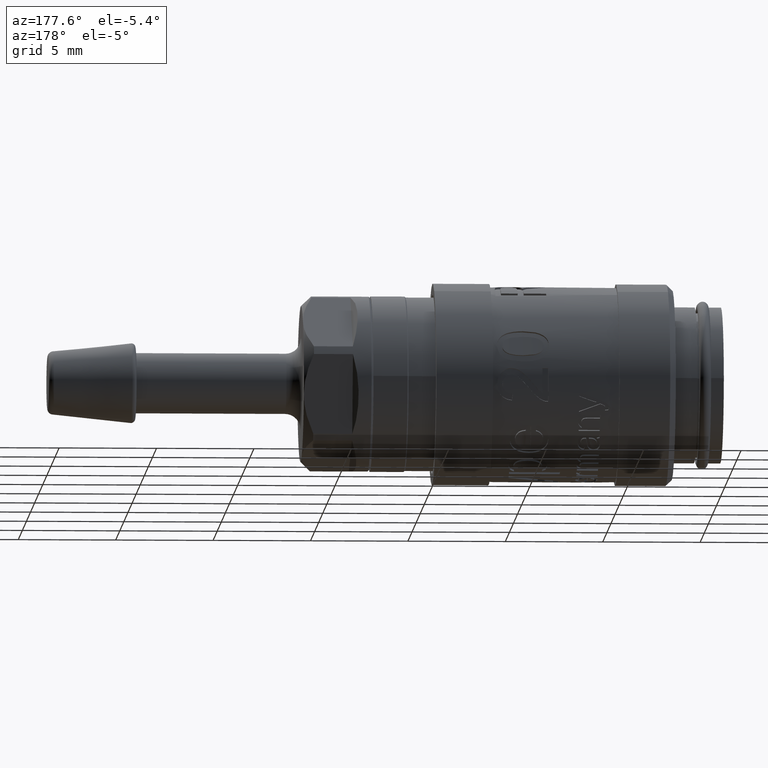
[diagram: clean part render]
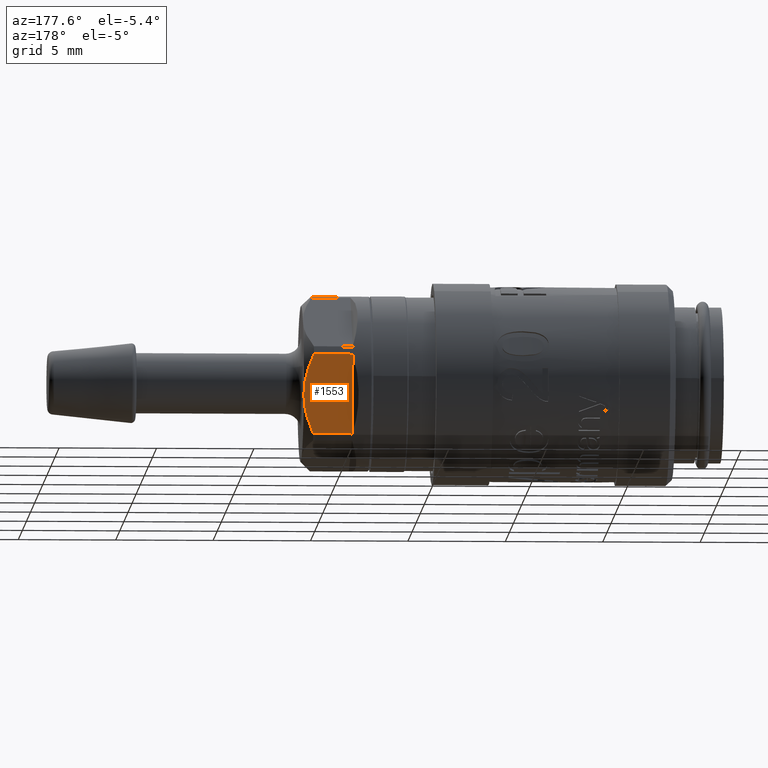
[diagram: same view with one face highlighted and labeled with its STEP entity id]
A machine part, auxiliary view. The second image highlights one B-rep face of the part: STEP entity #1553.
In plain terms, the highlighted planar face has unit normal (0, -0.9755, 0.2201).
Its self-contained STEP definition (entity closure, byte-faithful):
#947=CARTESIAN_POINT('',(21.050000000000004,3.448286589512926,-2.891248795345244));
#948=VERTEX_POINT('',#947);
#949=CARTESIAN_POINT('',(21.550000000000004,3.901947347086584,-0.880231163140669));
#950=VERTEX_POINT('',#949);
#951=CARTESIAN_POINT('',(21.050000000000004,3.448286589512926,-2.891248795345244));
#952=CARTESIAN_POINT('',(21.550000000000004,3.688459931757804,-1.826592401825174));
#953=CARTESIAN_POINT('',(21.550000000000004,3.901947347086584,-0.880231163140669));
#961=(BOUNDED_CURVE()B_SPLINE_CURVE(2,(#951,#952,#953),.UNSPECIFIED.,.F.,.U.)B_SPLINE_CURVE_WITH_KNOTS((3,3),(0.0,0.213402303537986),.UNSPECIFIED.)CURVE()GEOMETRIC_REPRESENTATION_ITEM()RATIONAL_B_SPLINE_CURVE((1.0,1.030776406404437,1.0))REPRESENTATION_ITEM(''));
#962=EDGE_CURVE('',#948,#950,#961,.T.);
#1065=CARTESIAN_POINT('',(21.050000000000004,4.355608104660243,1.130786469063905));
#1066=VERTEX_POINT('',#1065);
#1067=CARTESIAN_POINT('',(21.550000000000004,3.901947347086584,-0.880231163140669));
#1068=CARTESIAN_POINT('',(21.550000000000004,4.115434762415365,0.066130075543836));
#1069=CARTESIAN_POINT('',(21.050000000000004,4.355608104660243,1.130786469063905));
#1077=(BOUNDED_CURVE()B_SPLINE_CURVE(2,(#1067,#1068,#1069),.UNSPECIFIED.,.F.,.U.)B_SPLINE_CURVE_WITH_KNOTS((3,3),(0.213402303537986,0.426804607075971),.UNSPECIFIED.)CURVE()GEOMETRIC_REPRESENTATION_ITEM()RATIONAL_B_SPLINE_CURVE((1.0,1.030776406404401,1.0))REPRESENTATION_ITEM(''));
#1078=EDGE_CURVE('',#950,#1066,#1077,.T.);
#1419=CARTESIAN_POINT('',(19.050000000000001,4.355608104660243,1.130786469063904));
#1420=VERTEX_POINT('',#1419);
#1421=CARTESIAN_POINT('',(19.050000000000001,3.448286589512926,-2.891248795345244));
#1422=VERTEX_POINT('',#1421);
#1430=CARTESIAN_POINT('',(19.050000000000001,4.355608104660242,1.130786469063905));
#1431=DIRECTION('',(0.0,-0.220057790785167,-0.975486836771646));
#1432=VECTOR('',#1431,4.12310562561766);
#1433=LINE('',#1430,#1432);
#1434=EDGE_CURVE('',#1420,#1422,#1433,.T.);
#1531=CARTESIAN_POINT('',(19.050000000000001,3.901947347086584,-0.880231163140669));
#1532=DIRECTION('',(0.0,-0.975486836771646,0.220057790785167));
#1533=DIRECTION('',(0.0,0.220057790785167,0.975486836771646));
#1534=AXIS2_PLACEMENT_3D('',#1531,#1532,#1533);
#1535=PLANE('',#1534);
#1536=CARTESIAN_POINT('',(19.050000000000001,3.448286589512926,-2.891248795345244));
#1537=DIRECTION('',(1.0,0.0,0.0));
#1538=VECTOR('',#1537,2.000000000000004);
#1539=LINE('',#1536,#1538);
#1540=EDGE_CURVE('',#1422,#948,#1539,.T.);
#1541=ORIENTED_EDGE('',*,*,#1540,.F.);
#1542=ORIENTED_EDGE('',*,*,#1434,.F.);
#1543=CARTESIAN_POINT('',(21.050000000000004,4.355608104660243,1.130786469063905));
#1544=DIRECTION('',(-1.0,0.0,0.0));
#1545=VECTOR('',#1544,2.000000000000004);
#1546=LINE('',#1543,#1545);
#1547=EDGE_CURVE('',#1066,#1420,#1546,.T.);
#1548=ORIENTED_EDGE('',*,*,#1547,.F.);
#1549=ORIENTED_EDGE('',*,*,#1078,.F.);
#1550=ORIENTED_EDGE('',*,*,#962,.F.);
#1551=EDGE_LOOP('',(#1541,#1542,#1548,#1549,#1550));
#1552=FACE_OUTER_BOUND('',#1551,.T.);
#1553=ADVANCED_FACE('',(#1552),#1535,.F.);